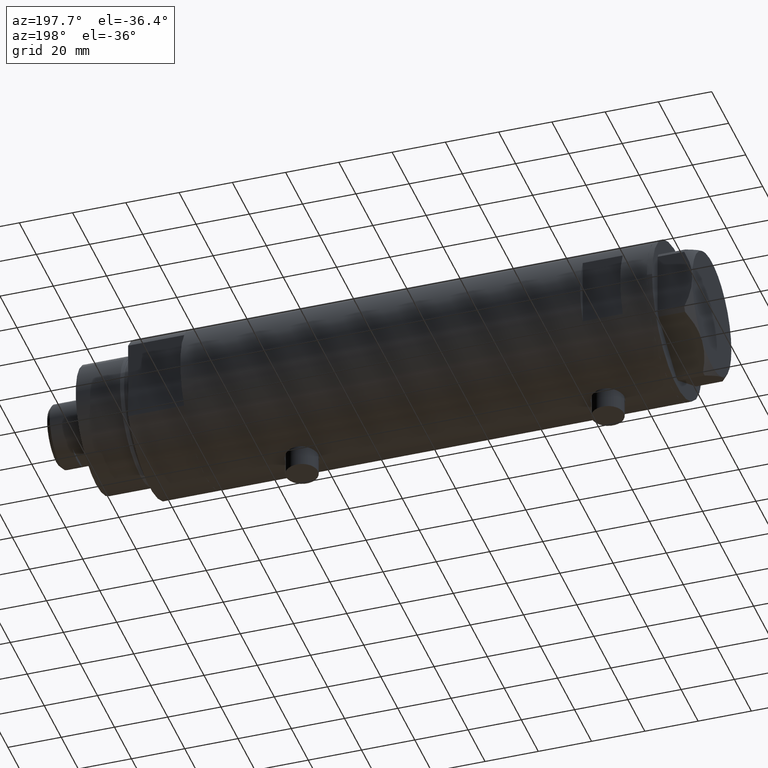
[diagram: clean part render]
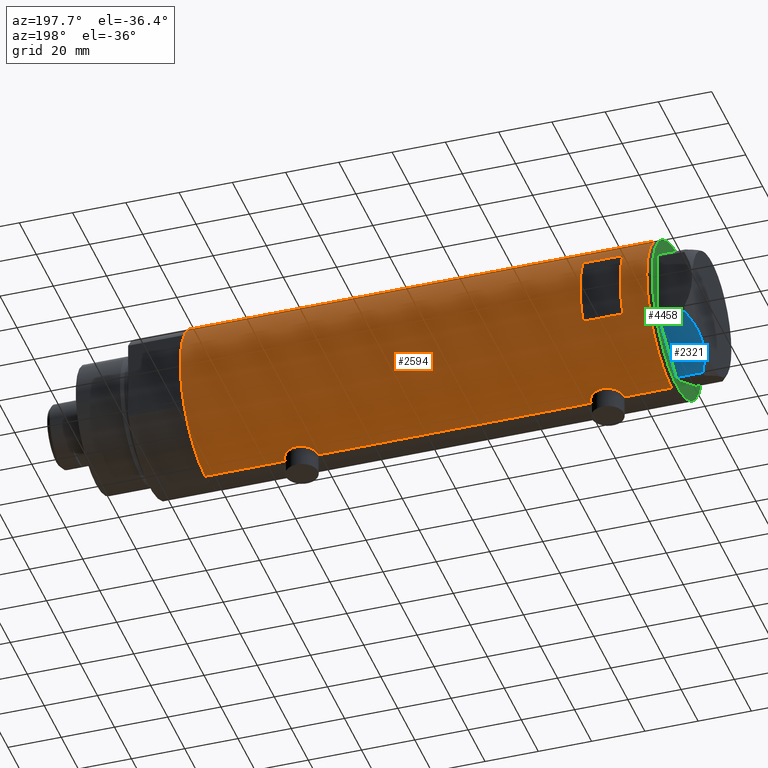
[diagram: same view with three faces highlighted in distinct colors, each labeled with its STEP entity id]
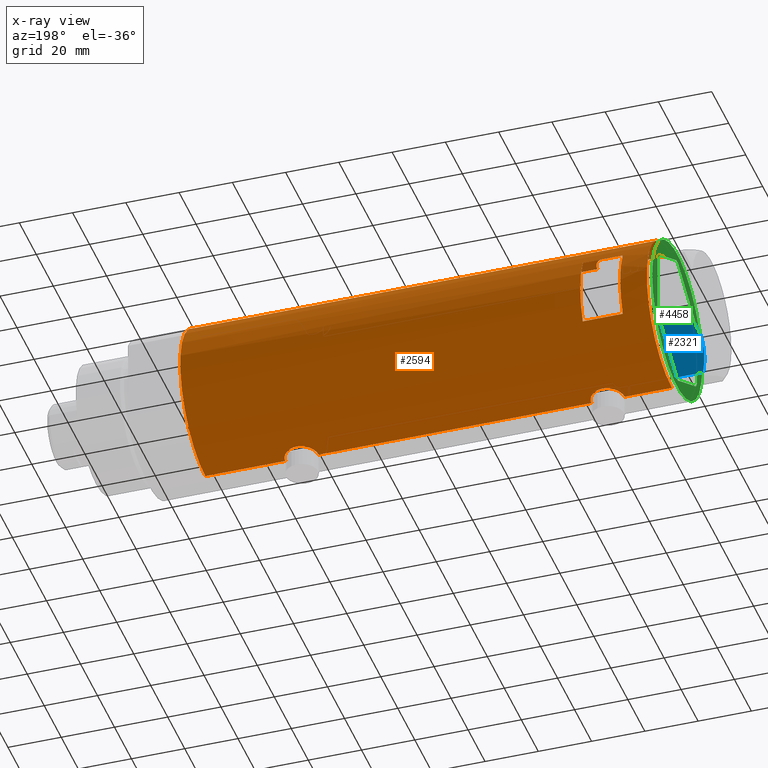
[diagram: x-ray of the same camera — body ghosted, the three highlighted faces saturated]
A machine part, auxiliary view with three faces highlighted in distinct colors.
The next image is the same camera in x-ray (body ghosted, the three faces saturated) — at least one of them is partly hidden behind the body in this view.
Their STEP definitions:

[orange] entity #2594 — the highlighted cylindrical surface (partial cylindrical patch) has radius 29.5 mm, axis along (-1, -0, 0).
#20 = CARTESIAN_POINT ( 'NONE',  ( 29.45150476095192360, 1.707859807438202315, 59.79292881343939570 ) ) ;
#35 = EDGE_CURVE ( 'NONE', #1515, #3606, #4014, .T. ) ;
#53 = EDGE_CURVE ( 'NONE', #2247, #709, #563, .T. ) ;
#61 = CARTESIAN_POINT ( 'NONE',  ( -29.50000000000000355, -1.989795151372050188E-15, -45.04999999999999005 ) ) ;
#86 = CARTESIAN_POINT ( 'NONE',  ( 29.49693976195335665, 0.4910732786937788696, 74.58799094295621046 ) ) ;
#89 = DIRECTION ( 'NONE',  ( 0.000000000000000000, 1.000000000000000000, -4.704334850106595203E-15 ) ) ;
#96 = CIRCLE ( 'NONE', #2564, 29.50000000000000355 ) ;
#171 = VECTOR ( 'NONE', #1683, 1000.000000000000000 ) ;
#221 = CARTESIAN_POINT ( 'NONE',  ( -29.33379699751450431, 3.132328395749495620, 58.18767835513889253 ) ) ;
#227 = CARTESIAN_POINT ( 'NONE',  ( -28.83028740688047620, 6.250162243045991772, -51.70646065908373856 ) ) ;
#244 = CARTESIAN_POINT ( 'NONE',  ( -29.50000000000000355, 0.4142160563134685836, 69.84999999999999432 ) ) ;
#247 = CIRCLE ( 'NONE', #2928, 29.50000000000000355 ) ;
#250 = CARTESIAN_POINT ( 'NONE',  ( -29.31451746246149526, 3.307268797680013694, -56.60714841985004142 ) ) ;
#265 = CARTESIAN_POINT ( 'NONE',  ( -29.21113960567726764, 4.128622307952521275, 58.88985466616444597 ) ) ;
#275 = CARTESIAN_POINT ( 'NONE',  ( 28.95590528945748687, 5.641861744747095564, -43.45235088071117246 ) ) ;
#287 = CARTESIAN_POINT ( 'NONE',  ( -29.12318177724206336, 4.709191267490247412, 59.47028949758345817 ) ) ;
#314 = CARTESIAN_POINT ( 'NONE',  ( -29.37156641804199708, 2.775801885207113795, 69.21472569706632783 ) ) ;
#326 = CARTESIAN_POINT ( 'NONE',  ( 28.95615051861771860, 5.649234316505054032, -53.35715418746725192 ) ) ;
#363 = DIRECTION ( 'NONE',  ( 0.000000000000000000, 4.625929269271487689E-15, 1.000000000000000000 ) ) ;
#364 = DIRECTION ( 'NONE',  ( 1.000000000000000000, 0.000000000000000000, 0.000000000000000000 ) ) ;
#378 = EDGE_CURVE ( 'NONE', #2247, #3555, #448, .T. ) ;
#384 = CARTESIAN_POINT ( 'NONE',  ( 29.17471722935868073, 4.373569479501278501, 61.00231157590981468 ) ) ;
#410 = CARTESIAN_POINT ( 'NONE',  ( 28.72322018454531189, 6.726124749058830510, 70.42706852850997734 ) ) ;
#417 = VERTEX_POINT ( 'NONE', #740 ) ;
#448 = CIRCLE ( 'NONE', #3178, 29.50000000000000355 ) ;
#466 = CARTESIAN_POINT ( 'NONE',  ( -29.41782704931129899, 2.208494778271262948, -45.44961702072823329 ) ) ;
#486 = ORIENTED_EDGE ( 'NONE', *, *, #53, .F. ) ;
#534 = CARTESIAN_POINT ( 'NONE',  ( -28.83035796536222861, 6.249836767212684663, -50.88856505377280115 ) ) ;
#541 = CARTESIAN_POINT ( 'NONE',  ( 29.45150476095192360, 1.707859807438201871, -55.70707118656059720 ) ) ;
#557 = CARTESIAN_POINT ( 'NONE',  ( 0.000000000000000000, 0.000000000000000000, 77.60000000000002274 ) ) ;
#563 = LINE ( 'NONE', #2328, #2675 ) ;
#576 = CARTESIAN_POINT ( 'NONE',  ( -29.43187585711094911, 2.013330896687708815, 69.52040860029104863 ) ) ;
#583 = CARTESIAN_POINT ( 'NONE',  ( -29.48289442777307201, 1.024392307325228124, -57.46888222528699686 ) ) ;
#592 = CARTESIAN_POINT ( 'NONE',  ( 29.47533087885488712, 1.230190383163952239, 74.50252131767059893 ) ) ;
#599 = CARTESIAN_POINT ( 'NONE',  ( -28.87327190949138256, 6.049038945481236773, 61.97548271794827457 ) ) ;
#612 = CARTESIAN_POINT ( 'NONE',  ( 28.77473834757381610, 6.507156404236260627, -52.16162684060293486 ) ) ;
#625 = CARTESIAN_POINT ( 'NONE',  ( -29.49999999999999645, 0.2042768310961489142, 57.34999999999998010 ) ) ;
#643 = CARTESIAN_POINT ( 'NONE',  ( -29.48933702067640539, 0.8192029158410146783, 57.40049277733301381 ) ) ;
#662 = CARTESIAN_POINT ( 'NONE',  ( -29.49128627113591605, 0.8212788586050359108, 69.80923124908871102 ) ) ;
#668 = CARTESIAN_POINT ( 'NONE',  ( -28.94521404191311831, 5.694822755760264421, -53.88333046401345428 ) ) ;
#692 = CARTESIAN_POINT ( 'NONE',  ( 29.43668864566816268, 1.946133027943908855, 59.85269087298998869 ) ) ;
#700 = CARTESIAN_POINT ( 'NONE',  ( 28.69800960089390074, 6.832546664705480666, -45.29724969708693294 ) ) ;
#709 = VERTEX_POINT ( 'NONE', #4451 ) ;
#715 = CARTESIAN_POINT ( 'NONE',  ( 28.54350045195475971, 7.451747857568897793, 66.11733997124500206 ) ) ;
#716 = CYLINDRICAL_SURFACE ( 'NONE', #3917, 29.50000000000000355 ) ;
#740 = CARTESIAN_POINT ( 'NONE',  ( -29.50000000000000355, 3.612708057484692393E-15, 87.59999999999999432 ) ) ;
#764 = VERTEX_POINT ( 'NONE', #2559 ) ;
#768 = CARTESIAN_POINT ( 'NONE',  ( 28.59328333056173221, 7.258376466535471749, 69.05124667484832912 ) ) ;
#769 = DIRECTION ( 'NONE',  ( 1.000000000000000000, 0.000000000000000000, 0.000000000000000000 ) ) ;
#784 = VERTEX_POINT ( 'NONE', #2585 ) ;
#790 = ORIENTED_EDGE ( 'NONE', *, *, #4267, .F. ) ;
#847 = CARTESIAN_POINT ( 'NONE',  ( -29.45614208737134732, 1.620034288692378199, -45.26011356088388737 ) ) ;
#858 = ORIENTED_EDGE ( 'NONE', *, *, #2428, .F. ) ;
#869 = CARTESIAN_POINT ( 'NONE',  ( -29.46640581083894261, 1.421634556901805402, -45.21041108910578998 ) ) ;
#870 = CARTESIAN_POINT ( 'NONE',  ( -29.50000000000000355, -3.685106651658548747E-16, 69.84999999999999432 ) ) ;
#886 = CARTESIAN_POINT ( 'NONE',  ( -29.43187585711095267, 2.013330896687710592, -45.37959139970892863 ) ) ;
#905 = CARTESIAN_POINT ( 'NONE',  ( -29.21045586191521082, 4.133246019522343495, -46.59426098433518604 ) ) ;
#912 = CARTESIAN_POINT ( 'NONE',  ( 29.17471722935868428, 4.373569479501278501, -54.49768842409016401 ) ) ;
#917 = EDGE_CURVE ( 'NONE', #3679, #417, #3800, .T. ) ;
#925 = CARTESIAN_POINT ( 'NONE',  ( -29.25454443288368722, 3.812919888526638879, 68.56897379180909979 ) ) ;
#946 = CARTESIAN_POINT ( 'NONE',  ( -28.96258065965881912, 5.606121065329691788, 60.82948014931239555 ) ) ;
#963 = CARTESIAN_POINT ( 'NONE',  ( -29.07990598238132662, 4.966177878631055087, 67.41685031646507298 ) ) ;
#970 = CARTESIAN_POINT ( 'NONE',  ( -28.99931529802529795, 5.412890550536865852, -54.43129199055216816 ) ) ;
#993 = CARTESIAN_POINT ( 'NONE',  ( -29.12318177724206691, 4.709191267490247412, -55.42971050241654751 ) ) ;
#997 = CARTESIAN_POINT ( 'NONE',  ( 29.26131531204081426, 3.767377415172554311, -41.89654697428871799 ) ) ;
#1035 = CARTESIAN_POINT ( 'NONE',  ( 29.50000000000000355, -8.867894669064240341E-21, -40.89999999999999858 ) ) ;
#1040 = CARTESIAN_POINT ( 'NONE',  ( 29.48463566286631377, 0.9832945201638395583, -40.96062548237706835 ) ) ;
#1050 = VECTOR ( 'NONE', #1667, 1000.000000000000000 ) ;
#1056 = CARTESIAN_POINT ( 'NONE',  ( 28.63233008736634133, 7.102474189478613198, 64.67814868761114155 ) ) ;
#1086 = ORIENTED_EDGE ( 'NONE', *, *, #2974, .F. ) ;
#1087 = CARTESIAN_POINT ( 'NONE',  ( 12.96148139681573319, 26.49999999999998934, 77.60000000000002274 ) ) ;
#1090 = EDGE_CURVE ( 'NONE', #3493, #764, #2997, .T. ) ;
#1096 = CARTESIAN_POINT ( 'NONE',  ( 29.50000000000000711, 0.4977435627019807241, 59.60000000000000853 ) ) ;
#1121 = CARTESIAN_POINT ( 'NONE',  ( 29.31521205951408504, 3.327945423969213223, 73.83906509227089998 ) ) ;
#1129 = VERTEX_POINT ( 'NONE', #1087 ) ;
#1147 = ORIENTED_EDGE ( 'NONE', *, *, #2776, .F. ) ;
#1171 = CARTESIAN_POINT ( 'NONE',  ( -28.87539346372184212, 6.038655803256923527, -49.67547335916925988 ) ) ;
#1217 = ORIENTED_EDGE ( 'NONE', *, *, #3432, .T. ) ;
#1250 = CARTESIAN_POINT ( 'NONE',  ( 29.38138226830144006, 2.652609128011935269, -55.41954601959671578 ) ) ;
#1261 = VECTOR ( 'NONE', #3569, 1000.000000000000000 ) ;
#1262 = CARTESIAN_POINT ( 'NONE',  ( -29.45783481716065211, 1.627188261681551396, 57.55163589091055343 ) ) ;
#1285 = CARTESIAN_POINT ( 'NONE',  ( -29.12335997091252793, 4.707903814166463974, 67.73078007378802567 ) ) ;
#1291 = CARTESIAN_POINT ( 'NONE',  ( -12.96148139681573319, 26.49999999999999645, -87.59999999999999432 ) ) ;
#1296 = CARTESIAN_POINT ( 'NONE',  ( 29.50000000000000355, 0.000000000000000000, -87.59999999999999432 ) ) ;
#1303 = CARTESIAN_POINT ( 'NONE',  ( -28.96085629491409819, 5.616414220648535682, 66.37199639590009781 ) ) ;
#1311 = CARTESIAN_POINT ( 'NONE',  ( 28.59637095282950625, 7.245897747848926151, -50.35127374277608681 ) ) ;
#1315 = DIRECTION ( 'NONE',  ( 0.000000000000000000, 0.000000000000000000, 1.000000000000000000 ) ) ;
#1322 = CARTESIAN_POINT ( 'NONE',  ( -28.83925158138408307, 6.209208576703538540, 62.77801617131193979 ) ) ;
#1350 = CARTESIAN_POINT ( 'NONE',  ( -29.45614208737133310, 1.620034288692375535, 69.63988643911609699 ) ) ;
#1360 = CARTESIAN_POINT ( 'NONE',  ( 28.72066933684370227, 6.738715173607846332, -51.72836955953554394 ) ) ;
#1372 = CARTESIAN_POINT ( 'NONE',  ( 28.59637095282950270, 7.245897747848927040, 65.14872625722391319 ) ) ;
#1396 = CARTESIAN_POINT ( 'NONE',  ( 29.38138226830143651, 2.652609128011935713, 60.08045398040327001 ) ) ;
#1426 = CARTESIAN_POINT ( 'NONE',  ( 28.54372006395177763, 7.450900983269892031, 68.08765735635913074 ) ) ;
#1444 = CARTESIAN_POINT ( 'NONE',  ( 29.48742029994219394, 0.9867701249543444630, 59.64905492505780416 ) ) ;
#1460 = CARTESIAN_POINT ( 'NONE',  ( 29.26131531204080360, 3.767377415172555644, 73.60345302571126069 ) ) ;
#1461 = FACE_OUTER_BOUND ( 'NONE', #4215, .T. ) ;
#1476 = ORIENTED_EDGE ( 'NONE', *, *, #3996, .F. ) ;
#1487 = DIRECTION ( 'NONE',  ( 0.000000000000000000, 0.000000000000000000, 1.000000000000000000 ) ) ;
#1515 = VERTEX_POINT ( 'NONE', #2774 ) ;
#1523 = DIRECTION ( 'NONE',  ( 0.000000000000000000, 0.000000000000000000, 1.000000000000000000 ) ) ;
#1526 = B_SPLINE_CURVE_WITH_KNOTS ( 'NONE', 3,
 ( #3987, #3964, #4344, #869, #847, #886, #466, #2258, #1856, #3218, #905, #2883, #2595, #1941, #4254, #3305, #3628, #1171, #2220, #3586, #534, #227, #2389, #1958, #3369, #668, #3030, #970, #3672, #4072, #993, #3694, #3078, #250, #2654, #2370, #4112, #2694, #2307, #583, #4433, #1635, #1673, #3009 ),
 .UNSPECIFIED., .F., .F.,
 ( 4, 2, 2, 2, 2, 2, 2, 2, 2, 2, 2, 2, 2, 2, 2, 2, 2, 2, 2, 2, 2, 4 ),
 ( 1.932886166535861628E-18, 0.001224749128302346848, 0.001837123692453517237, 0.002449498256604687625, 0.003674247384907027535, 0.004898996513209368311, 0.006123745641511708221, 0.007348494769814048130, 0.007960869333965210279, 0.008573243898116372427, 0.009797993026418693255, 0.01102274215472101582, 0.01224749128302333664, 0.01285986584717448838, 0.01347224041132563666, 0.01469698953962794014, 0.01592173866793024709, 0.01653411323208139536, 0.01714648779623254710, 0.01837123692453484017, 0.01898361148868598497, 0.01959598605283713324 ),
 .UNSPECIFIED. ) ;
#1589 = EDGE_CURVE ( 'NONE', #3846, #3493, #1938, .T. ) ;
#1605 = B_SPLINE_CURVE_WITH_KNOTS ( 'NONE', 3,
 ( #4382, #244, #662, #3365, #1350, #576, #3024, #314, #1653, #925, #3713, #1285, #963, #3383, #1303, #1690, #4428, #2036, #4087, #2339, #4337, #4026, #1322, #599, #1953, #3405, #946, #2319, #3316, #2364, #287, #265, #3749, #3688, #221, #1669, #2959, #4399, #1262, #2632, #643, #2303, #625, #1975 ),
 .UNSPECIFIED., .F., .F.,
 ( 4, 2, 2, 2, 2, 2, 2, 2, 2, 2, 2, 2, 2, 2, 2, 2, 2, 2, 2, 2, 2, 4 ),
 ( 3.579711039243685734E-19, 0.001224749128302344029, 0.001837123692453515285, 0.002449498256604686758, 0.003674247384907013657, 0.004898996513209340556, 0.006123745641511668322, 0.007348494769813995221, 0.007960869333965159972, 0.008573243898116323855, 0.009797993026418609988, 0.01102274215472089959, 0.01224749128302318572, 0.01285986584717433920, 0.01347224041132549614, 0.01469698953962781697, 0.01592173866793014300, 0.01653411323208130515, 0.01714648779623246730, 0.01837123692453479160, 0.01898361148868595721, 0.01959598605283711936 ),
 .UNSPECIFIED. ) ;
#1635 = CARTESIAN_POINT ( 'NONE',  ( -29.49787850362430675, 0.4089683628077651623, -57.54001026437015298 ) ) ;
#1640 = CARTESIAN_POINT ( 'NONE',  ( 28.89369475765811757, 5.952264974793427754, -43.83049483813753966 ) ) ;
#1653 = CARTESIAN_POINT ( 'NONE',  ( -29.33500454540941149, 3.134363790739238542, 69.02262134463678933 ) ) ;
#1660 = CARTESIAN_POINT ( 'NONE',  ( 28.63233008736633778, 7.102474189478610533, -50.82185131238886555 ) ) ;
#1667 = DIRECTION ( 'NONE',  ( -0.000000000000000000, -0.000000000000000000, -1.000000000000000000 ) ) ;
#1669 = CARTESIAN_POINT ( 'NONE',  ( -29.37021410611213312, 2.770135525807581711, 57.99365930977168659 ) ) ;
#1673 = CARTESIAN_POINT ( 'NONE',  ( -29.50000000000000355, 0.2042768310961517730, -57.55000000000001137 ) ) ;
#1676 = CARTESIAN_POINT ( 'NONE',  ( 29.50000000000000355, -8.867894669064240341E-21, -40.89999999999999858 ) ) ;
#1683 = DIRECTION ( 'NONE',  ( 0.000000000000000000, 0.000000000000000000, 1.000000000000000000 ) ) ;
#1690 = CARTESIAN_POINT ( 'NONE',  ( -28.91416466586725420, 5.850419487802255070, 65.80827647633630306 ) ) ;
#1704 = CARTESIAN_POINT ( 'NONE',  ( 28.86328010881652872, 6.097564286278109869, -44.02631709077303412 ) ) ;
#1722 = CARTESIAN_POINT ( 'NONE',  ( 28.53073993742369296, 7.499791908386148620, 66.60538051566959439 ) ) ;
#1728 = CARTESIAN_POINT ( 'NONE',  ( 28.65280969280606982, 7.019670864411686750, -51.05213168683109615 ) ) ;
#1745 = CARTESIAN_POINT ( 'NONE',  ( 29.50000000000000355, 0.000000000000000000, -87.59999999999999432 ) ) ;
#1760 = CARTESIAN_POINT ( 'NONE',  ( 29.05056090758569098, 5.132790299589558458, 61.62608273347917276 ) ) ;
#1802 = CARTESIAN_POINT ( 'NONE',  ( 28.89369475765812112, 5.952264974793427754, 71.66950516186246034 ) ) ;
#1820 = CARTESIAN_POINT ( 'NONE',  ( 29.50000000000000355, -8.867894669064240341E-21, 74.59999999999999432 ) ) ;
#1846 = VERTEX_POINT ( 'NONE', #2378 ) ;
#1856 = CARTESIAN_POINT ( 'NONE',  ( -29.33500454540941149, 3.134363790739244759, -45.87737865536319504 ) ) ;
#1925 = CARTESIAN_POINT ( 'NONE',  ( 29.40165444879503909, 2.418426732012822100, -55.50367056434786406 ) ) ;
#1938 = B_SPLINE_CURVE_WITH_KNOTS ( 'NONE', 3,
 ( #3500, #1096, #1444, #20, #692, #3328, #1396, #2756, #2086, #384, #2438, #4452, #1760, #3077, #2476, #2456, #4140, #3116, #1056, #1372, #3801, #715, #1722, #2503, #1426, #768, #3819, #4202, #410, #2730, #4110, #2065, #1802, #3430, #3472, #3160, #2829, #1460, #1121, #2662, #1969, #592, #2212, #86, #2315, #1820 ),
 .UNSPECIFIED., .F., .F.,
 ( 4, 2, 2, 2, 2, 2, 2, 2, 2, 2, 2, 2, 2, 2, 2, 2, 2, 2, 2, 2, 2, 2, 4 ),
 ( 2.075019889373263572E-18, 0.001471587963626213007, 0.002207381945439318427, 0.002943175927252423846, 0.004414763890878631650, 0.005150557872691736636, 0.005886351854504842489, 0.007357939818131036848, 0.008829527781757228605, 0.009565321763570345734, 0.01030111574538346113, 0.01177270370900965375, 0.01324429167263584638, 0.01471587963626204074, 0.01545167361807513358, 0.01618746759988822989, 0.01692326158170132794, 0.01765905556351441905, 0.01913064352714058391, 0.02060223149076674184, 0.02207381945439290671, 0.02280961343620598394, 0.02354540741801906811 ),
 .UNSPECIFIED. ) ;
#1941 = CARTESIAN_POINT ( 'NONE',  ( -28.99817753551065280, 5.423057650933445828, -48.16603848537405952 ) ) ;
#1953 = CARTESIAN_POINT ( 'NONE',  ( -28.89816269917384872, 5.930588606439750166, 61.58529684457829489 ) ) ;
#1958 = CARTESIAN_POINT ( 'NONE',  ( -28.87327190949136835, 6.049038945481238549, -52.92451728205170980 ) ) ;
#1969 = CARTESIAN_POINT ( 'NONE',  ( 29.43913092143246146, 1.954882548385545649, 74.35749234733351898 ) ) ;
#1975 = CARTESIAN_POINT ( 'NONE',  ( -29.50000000000000355, 3.612706708236066082E-15, 57.34999999999998721 ) ) ;
#2024 = CARTESIAN_POINT ( 'NONE',  ( 28.72322018454529768, 6.726124749058826957, -45.07293147149000845 ) ) ;
#2036 = CARTESIAN_POINT ( 'NONE',  ( -28.87539346372185634, 6.038655803256916421, 65.22452664083074581 ) ) ;
#2049 = CARTESIAN_POINT ( 'NONE',  ( 29.31521205951408859, 3.327945423969223881, -41.66093490772912133 ) ) ;
#2065 = CARTESIAN_POINT ( 'NONE',  ( 28.86328010881651451, 6.097564286278104539, 71.47368290922693745 ) ) ;
#2083 = CARTESIAN_POINT ( 'NONE',  ( -29.50000000000000355, 3.612708057484692393E-15, -87.59999999999999432 ) ) ;
#2086 = CARTESIAN_POINT ( 'NONE',  ( 29.26187100173485334, 3.763222966830670480, 60.59401741939379349 ) ) ;
#2088 = DIRECTION ( 'NONE',  ( 0.000000000000000000, 0.000000000000000000, 1.000000000000000000 ) ) ;
#2130 = LINE ( 'NONE', #3498, #3649 ) ;
#2141 = EDGE_CURVE ( 'NONE', #709, #2641, #2658, .T. ) ;
#2169 = CARTESIAN_POINT ( 'NONE',  ( -29.50000000000000355, 3.612708057484692393E-15, -87.59999999999999432 ) ) ;
#2178 = VERTEX_POINT ( 'NONE', #2700 ) ;
#2212 = CARTESIAN_POINT ( 'NONE',  ( 29.48463566286631377, 0.9832945201638393362, 74.53937451762291744 ) ) ;
#2213 = DIRECTION ( 'NONE',  ( -0.000000000000000000, -0.000000000000000000, -1.000000000000000000 ) ) ;
#2220 = CARTESIAN_POINT ( 'NONE',  ( -28.86473101544359210, 6.089252369705496548, -49.87667050833969284 ) ) ;
#2222 = CARTESIAN_POINT ( 'NONE',  ( -12.96148139681573319, 26.49999999999998934, 77.60000000000002274 ) ) ;
#2242 = DIRECTION ( 'NONE',  ( 0.000000000000000000, 0.000000000000000000, 1.000000000000000000 ) ) ;
#2247 = VERTEX_POINT ( 'NONE', #1745 ) ;
#2258 = CARTESIAN_POINT ( 'NONE',  ( -29.37156641804198642, 2.775801885207113351, -45.68527430293367786 ) ) ;
#2266 = CARTESIAN_POINT ( 'NONE',  ( 29.50000000000000355, -1.363453657738827866E-15, -55.89999999999999858 ) ) ;
#2303 = CARTESIAN_POINT ( 'NONE',  ( -29.49787850362430319, 0.4089683628077612210, 57.35998973562983849 ) ) ;
#2307 = CARTESIAN_POINT ( 'NONE',  ( -29.45783481716064856, 1.627188261681552284, -57.34836410908944515 ) ) ;
#2315 = CARTESIAN_POINT ( 'NONE',  ( 29.50000000000000355, 0.2453482418156841816, 74.59999999999999432 ) ) ;
#2319 = CARTESIAN_POINT ( 'NONE',  ( -28.99931529802531927, 5.412890550536861412, 60.46870800944782331 ) ) ;
#2328 = CARTESIAN_POINT ( 'NONE',  ( 29.50000000000000355, 0.000000000000000000, -87.59999999999999432 ) ) ;
#2339 = CARTESIAN_POINT ( 'NONE',  ( -28.83909818927744695, 6.209925900742497618, 64.41778075451992436 ) ) ;
#2364 = CARTESIAN_POINT ( 'NONE',  ( -29.07940225710135351, 4.969011347753393260, 59.78730265529816990 ) ) ;
#2370 = CARTESIAN_POINT ( 'NONE',  ( -29.37021410611214378, 2.770135525807589261, -56.90634069022830488 ) ) ;
#2373 = CARTESIAN_POINT ( 'NONE',  ( 29.08308069045668631, 4.954707331652121738, -42.74826371623226606 ) ) ;
#2378 = CARTESIAN_POINT ( 'NONE',  ( -29.50000000000000355, 3.612706708267620518E-15, -57.55000000000000426 ) ) ;
#2389 = CARTESIAN_POINT ( 'NONE',  ( -28.83925158138407596, 6.209208576703542981, -52.12198382868806590 ) ) ;
#2428 = EDGE_CURVE ( 'NONE', #3932, #1846, #1526, .T. ) ;
#2438 = CARTESIAN_POINT ( 'NONE',  ( 29.14416130131008842, 4.572185141625602078, 61.14974588234445463 ) ) ;
#2453 = CARTESIAN_POINT ( 'NONE',  ( 0.000000000000000000, 0.000000000000000000, 87.59999999999999432 ) ) ;
#2456 = CARTESIAN_POINT ( 'NONE',  ( 28.77473834757382321, 6.507156404236264180, 63.33837315939705093 ) ) ;
#2457 = CARTESIAN_POINT ( 'NONE',  ( 0.000000000000000000, 0.000000000000000000, -87.59999999999999432 ) ) ;
#2476 = CARTESIAN_POINT ( 'NONE',  ( 28.89325003604224307, 5.958922200807243996, 62.51915213504485536 ) ) ;
#2477 = FACE_BOUND ( 'NONE', #3923, .T. ) ;
#2499 = DIRECTION ( 'NONE',  ( 0.000000000000000000, 0.000000000000000000, 1.000000000000000000 ) ) ;
#2503 = CARTESIAN_POINT ( 'NONE',  ( 28.53063088452983465, 7.500206755597514707, 67.58828856904807481 ) ) ;
#2559 = CARTESIAN_POINT ( 'NONE',  ( 29.50000000000000355, 0.000000000000000000, 87.59999999999999432 ) ) ;
#2564 = AXIS2_PLACEMENT_3D ( 'NONE', #2453, #2499, #3155 ) ;
#2584 = ORIENTED_EDGE ( 'NONE', *, *, #3396, .F. ) ;
#2585 = CARTESIAN_POINT ( 'NONE',  ( -29.50000000000000355, 3.612706708236066082E-15, 57.34999999999998721 ) ) ;
#2594 = ADVANCED_FACE ( 'NONE', ( #2477, #1461 ), #716, .T. ) ;
#2595 = CARTESIAN_POINT ( 'NONE',  ( -29.07990598238133373, 4.966177878631063081, -47.48314968353489718 ) ) ;
#2618 = CARTESIAN_POINT ( 'NONE',  ( 29.31463363472445849, 3.333180401682678262, -55.13656844683045222 ) ) ;
#2632 = CARTESIAN_POINT ( 'NONE',  ( -29.48289442777306846, 1.024392307325223905, 57.43111777471300883 ) ) ;
#2641 = VERTEX_POINT ( 'NONE', #1035 ) ;
#2654 = CARTESIAN_POINT ( 'NONE',  ( -29.33379699751449365, 3.132328395749501393, -56.71232164486110605 ) ) ;
#2657 = CARTESIAN_POINT ( 'NONE',  ( 29.47533087885489067, 1.230190383163956458, -40.99747868232940817 ) ) ;
#2658 = B_SPLINE_CURVE_WITH_KNOTS ( 'NONE', 3,
 ( #2266, #3634, #2950, #541, #4326, #1925, #1250, #2618, #3993, #912, #4440, #3436, #3786, #326, #4076, #612, #1360, #1728, #1660, #1311, #3392, #3723, #3355, #4120, #2677, #3035, #3373, #700, #2024, #4459, #3702, #1704, #1640, #275, #4033, #2373, #4389, #997, #2049, #4414, #3082, #2657, #1040, #3740, #4054, #1676 ),
 .UNSPECIFIED., .F., .F.,
 ( 4, 2, 2, 2, 2, 2, 2, 2, 2, 2, 2, 2, 2, 2, 2, 2, 2, 2, 2, 2, 2, 2, 4 ),
 ( 1.324216582005999085E-18, 0.001471587963626213007, 0.002207381945439318427, 0.002943175927252423846, 0.004414763890878634252, 0.005150557872691738370, 0.005886351854504841621, 0.007357939818131030776, 0.008829527781757219931, 0.009565321763570316244, 0.01030111574538341256, 0.01177270370900960171, 0.01324429167263579260, 0.01471587963626198176, 0.01545167361807507807, 0.01618746759988817091, 0.01692326158170126896, 0.01765905556351436007, 0.01913064352714053881, 0.02060223149076671756, 0.02207381945439289284, 0.02280961343620598047, 0.02354540741801906811 ),
 .UNSPECIFIED. ) ;
#2662 = CARTESIAN_POINT ( 'NONE',  ( 29.40387556522357571, 2.422597899785625231, 74.21486039769831677 ) ) ;
#2675 = VECTOR ( 'NONE', #2242, 1000.000000000000000 ) ;
#2677 = CARTESIAN_POINT ( 'NONE',  ( 28.54372006395177763, 7.450900983269891142, -47.41234264364084794 ) ) ;
#2694 = CARTESIAN_POINT ( 'NONE',  ( -29.43341305963175714, 2.016871341298211551, -57.22974668998805470 ) ) ;
#2700 = CARTESIAN_POINT ( 'NONE',  ( 12.96148139681571898, 26.50000000000000355, 62.60000000000001563 ) ) ;
#2730 = CARTESIAN_POINT ( 'NONE',  ( 28.77649569280672992, 6.494415104660914650, 70.85934988816623559 ) ) ;
#2756 = CARTESIAN_POINT ( 'NONE',  ( 29.31463363472445849, 3.333180401682676930, 60.36343155316954068 ) ) ;
#2765 = AXIS2_PLACEMENT_3D ( 'NONE', #557, #2213, #3211 ) ;
#2768 = VECTOR ( 'NONE', #1523, 1000.000000000000000 ) ;
#2774 = CARTESIAN_POINT ( 'NONE',  ( -12.96148139681574030, 26.50000000000000355, 62.60000000000001563 ) ) ;
#2776 = EDGE_CURVE ( 'NONE', #3606, #1129, #4139, .T. ) ;
#2788 = ORIENTED_EDGE ( 'NONE', *, *, #917, .T. ) ;
#2829 = CARTESIAN_POINT ( 'NONE',  ( 29.14546206473281487, 4.578181670952602644, 73.06056091603291236 ) ) ;
#2871 = EDGE_CURVE ( 'NONE', #3679, #784, #1605, .T. ) ;
#2883 = CARTESIAN_POINT ( 'NONE',  ( -29.12335997091253148, 4.707903814166472856, -47.16921992621198001 ) ) ;
#2884 = CARTESIAN_POINT ( 'NONE',  ( 29.50000000000000355, -8.867894669064240341E-21, 74.59999999999999432 ) ) ;
#2904 = VECTOR ( 'NONE', #1315, 1000.000000000000000 ) ;
#2928 = AXIS2_PLACEMENT_3D ( 'NONE', #3119, #363, #89 ) ;
#2950 = CARTESIAN_POINT ( 'NONE',  ( 29.48742029994219038, 0.9867701249543437969, -55.85094507494218163 ) ) ;
#2959 = CARTESIAN_POINT ( 'NONE',  ( -29.38727827406289705, 2.583363936682820938, 57.90521973871332051 ) ) ;
#2974 = EDGE_CURVE ( 'NONE', #764, #417, #96, .T. ) ;
#2997 = LINE ( 'NONE', #1296, #2904 ) ;
#3009 = CARTESIAN_POINT ( 'NONE',  ( -29.50000000000000355, 3.612706708267620518E-15, -57.55000000000000426 ) ) ;
#3024 = CARTESIAN_POINT ( 'NONE',  ( -29.41782704931130255, 2.208494778271264725, 69.45038297927175108 ) ) ;
#3030 = CARTESIAN_POINT ( 'NONE',  ( -28.96258065965880846, 5.606121065329696229, -54.07051985068762434 ) ) ;
#3035 = CARTESIAN_POINT ( 'NONE',  ( 28.59328333056173221, 7.258376466535469085, -46.44875332515167798 ) ) ;
#3077 = CARTESIAN_POINT ( 'NONE',  ( 28.95615051861771860, 5.649234316505054920, 62.14284581253274098 ) ) ;
#3078 = CARTESIAN_POINT ( 'NONE',  ( -29.25435602127558354, 3.814249285079252427, -56.26783729533990908 ) ) ;
#3082 = CARTESIAN_POINT ( 'NONE',  ( 29.43913092143246146, 1.954882548385549423, -41.14250765266648813 ) ) ;
#3116 = CARTESIAN_POINT ( 'NONE',  ( 28.65280969280607692, 7.019670864411689415, 64.44786831316889675 ) ) ;
#3119 = CARTESIAN_POINT ( 'NONE',  ( 0.000000000000000000, 0.000000000000000000, 62.60000000000011511 ) ) ;
#3121 = ORIENTED_EDGE ( 'NONE', *, *, #2141, .F. ) ;
#3155 = DIRECTION ( 'NONE',  ( 1.000000000000000000, 0.000000000000000000, 0.000000000000000000 ) ) ;
#3160 = CARTESIAN_POINT ( 'NONE',  ( 29.08308069045667565, 4.954707331652127955, 72.75173628376771262 ) ) ;
#3164 = CARTESIAN_POINT ( 'NONE',  ( 0.000000000000000000, 0.000000000000000000, -87.59999999999999432 ) ) ;
#3178 = AXIS2_PLACEMENT_3D ( 'NONE', #3164, #3453, #364 ) ;
#3211 = DIRECTION ( 'NONE',  ( 1.000000000000000000, -1.776356839400250267E-15, 0.000000000000000000 ) ) ;
#3218 = CARTESIAN_POINT ( 'NONE',  ( -29.25454443288369433, 3.812919888526644652, -46.33102620819088457 ) ) ;
#3224 = EDGE_CURVE ( 'NONE', #3932, #784, #3955, .T. ) ;
#3231 = ORIENTED_EDGE ( 'NONE', *, *, #1090, .F. ) ;
#3265 = ORIENTED_EDGE ( 'NONE', *, *, #2871, .F. ) ;
#3305 = CARTESIAN_POINT ( 'NONE',  ( -28.91416466586724354, 5.850419487802259511, -49.09172352366371683 ) ) ;
#3312 = CARTESIAN_POINT ( 'NONE',  ( -29.50000000000000355, 3.612708057484692393E-15, -87.59999999999999432 ) ) ;
#3316 = CARTESIAN_POINT ( 'NONE',  ( -29.01875661852155019, 5.308007315944000659, 60.29411629999106736 ) ) ;
#3328 = CARTESIAN_POINT ( 'NONE',  ( 29.40165444879503909, 2.418426732012822544, 59.99632943565210041 ) ) ;
#3355 = CARTESIAN_POINT ( 'NONE',  ( 28.53073993742368586, 7.499791908386146844, -48.89461948433040561 ) ) ;
#3365 = CARTESIAN_POINT ( 'NONE',  ( -29.46640581083894261, 1.421634556901801627, 69.68958891089418728 ) ) ;
#3369 = CARTESIAN_POINT ( 'NONE',  ( -28.89816269917384162, 5.930588606439753718, -53.31470315542169658 ) ) ;
#3373 = CARTESIAN_POINT ( 'NONE',  ( 28.62953349941190240, 7.116010646391488947, -45.98020539076898672 ) ) ;
#3383 = CARTESIAN_POINT ( 'NONE',  ( -28.99817753551064925, 5.423057650933436058, 66.73396151462593195 ) ) ;
#3388 = CARTESIAN_POINT ( 'NONE',  ( 29.50000000000000355, -2.136503572369537054E-15, 59.59999999999999432 ) ) ;
#3392 = CARTESIAN_POINT ( 'NONE',  ( 28.58083212642745607, 7.306745240314146628, -50.10953669436206326 ) ) ;
#3396 = EDGE_CURVE ( 'NONE', #1129, #2178, #4421, .T. ) ;
#3405 = CARTESIAN_POINT ( 'NONE',  ( -28.94521404191312541, 5.694822755760258204, 61.01666953598656562 ) ) ;
#3430 = CARTESIAN_POINT ( 'NONE',  ( 28.95590528945748687, 5.641861744747097340, 72.04764911928884885 ) ) ;
#3432 = EDGE_CURVE ( 'NONE', #3555, #1846, #4130, .T. ) ;
#3436 = CARTESIAN_POINT ( 'NONE',  ( 29.08204711695421452, 4.951923910293528408, -54.03816021594297325 ) ) ;
#3453 = DIRECTION ( 'NONE',  ( 0.000000000000000000, 0.000000000000000000, 1.000000000000000000 ) ) ;
#3472 = CARTESIAN_POINT ( 'NONE',  ( 28.98787507734748914, 5.475789924529800956, 72.23089043376626250 ) ) ;
#3493 = VERTEX_POINT ( 'NONE', #2884 ) ;
#3498 = CARTESIAN_POINT ( 'NONE',  ( 29.50000000000000355, 0.000000000000000000, -87.59999999999999432 ) ) ;
#3500 = CARTESIAN_POINT ( 'NONE',  ( 29.50000000000000355, -2.136503572369537054E-15, 59.59999999999999432 ) ) ;
#3555 = VERTEX_POINT ( 'NONE', #3769 ) ;
#3569 = DIRECTION ( 'NONE',  ( 0.000000000000000000, 0.000000000000000000, 1.000000000000000000 ) ) ;
#3586 = CARTESIAN_POINT ( 'NONE',  ( -28.83909818927744340, 6.209925900742502058, -50.48221924548004580 ) ) ;
#3606 = VERTEX_POINT ( 'NONE', #2222 ) ;
#3628 = CARTESIAN_POINT ( 'NONE',  ( -28.90008889585328333, 5.919338933253951218, -49.28359792941950701 ) ) ;
#3634 = CARTESIAN_POINT ( 'NONE',  ( 29.50000000000000711, 0.4977435627019808351, -55.89999999999999147 ) ) ;
#3649 = VECTOR ( 'NONE', #1487, 1000.000000000000000 ) ;
#3661 = CARTESIAN_POINT ( 'NONE',  ( 12.96148139681573319, 26.49999999999999645, -87.59999999999999432 ) ) ;
#3672 = CARTESIAN_POINT ( 'NONE',  ( -29.01875661852155019, 5.308007315944003324, -54.60588370000890279 ) ) ;
#3679 = VERTEX_POINT ( 'NONE', #870 ) ;
#3688 = CARTESIAN_POINT ( 'NONE',  ( -29.31451746246149881, 3.307268797680012806, 58.29285158014997137 ) ) ;
#3694 = CARTESIAN_POINT ( 'NONE',  ( -29.21113960567726409, 4.128622307952523052, -56.01014533383550997 ) ) ;
#3702 = CARTESIAN_POINT ( 'NONE',  ( 28.80468126786726657, 6.368639251981141669, -44.43139489317929502 ) ) ;
#3713 = CARTESIAN_POINT ( 'NONE',  ( -29.21045586191520371, 4.133246019522335502, 68.30573901566479833 ) ) ;
#3723 = CARTESIAN_POINT ( 'NONE',  ( 28.54350045195475971, 7.451747857568896016, -49.38266002875501925 ) ) ;
#3740 = CARTESIAN_POINT ( 'NONE',  ( 29.49693976195336020, 0.4910732786937798133, -40.91200905704376112 ) ) ;
#3749 = CARTESIAN_POINT ( 'NONE',  ( -29.25435602127558354, 3.814249285079249319, 58.63216270466007529 ) ) ;
#3769 = CARTESIAN_POINT ( 'NONE',  ( -29.50000000000000355, 3.612708057484692393E-15, -87.59999999999999432 ) ) ;
#3786 = CARTESIAN_POINT ( 'NONE',  ( 29.05056090758568388, 5.132790299589556682, -53.87391726652084145 ) ) ;
#3800 = LINE ( 'NONE', #2083, #1261 ) ;
#3801 = CARTESIAN_POINT ( 'NONE',  ( 28.58083212642745252, 7.306745240314150180, 65.39046330563792253 ) ) ;
#3808 = ORIENTED_EDGE ( 'NONE', *, *, #1589, .F. ) ;
#3819 = CARTESIAN_POINT ( 'NONE',  ( 28.62953349941190595, 7.116010646391488947, 69.51979460923099907 ) ) ;
#3846 = VERTEX_POINT ( 'NONE', #3388 ) ;
#3917 = AXIS2_PLACEMENT_3D ( 'NONE', #2457, #2088, #769 ) ;
#3923 = EDGE_LOOP ( 'NONE', ( #4161, #1476, #2584, #1147 ) ) ;
#3932 = VERTEX_POINT ( 'NONE', #61 ) ;
#3955 = LINE ( 'NONE', #3312, #171 ) ;
#3964 = CARTESIAN_POINT ( 'NONE',  ( -29.50000000000000711, 0.4142160563134685836, -45.04999999999999716 ) ) ;
#3987 = CARTESIAN_POINT ( 'NONE',  ( -29.50000000000000355, -1.989795151372050188E-15, -45.04999999999999005 ) ) ;
#3993 = CARTESIAN_POINT ( 'NONE',  ( 29.26187100173485334, 3.763222966830669147, -54.90598258060620651 ) ) ;
#3996 = EDGE_CURVE ( 'NONE', #2178, #1515, #247, .T. ) ;
#4014 = LINE ( 'NONE', #1291, #4335 ) ;
#4026 = CARTESIAN_POINT ( 'NONE',  ( -28.83028740688047620, 6.250162243045986443, 63.19353934091626002 ) ) ;
#4033 = CARTESIAN_POINT ( 'NONE',  ( 28.98787507734748914, 5.475789924529796515, -43.26910956623376592 ) ) ;
#4054 = CARTESIAN_POINT ( 'NONE',  ( 29.50000000000000711, 0.2453482418156837930, -40.89999999999999858 ) ) ;
#4072 = CARTESIAN_POINT ( 'NONE',  ( -29.07940225710134996, 4.969011347753393260, -55.11269734470185000 ) ) ;
#4076 = CARTESIAN_POINT ( 'NONE',  ( 28.89325003604224307, 5.958922200807236891, -52.98084786495515175 ) ) ;
#4087 = CARTESIAN_POINT ( 'NONE',  ( -28.86473101544358499, 6.089252369705491219, 65.02332949166031995 ) ) ;
#4110 = CARTESIAN_POINT ( 'NONE',  ( 28.80468126786726302, 6.368639251981137228, 71.06860510682068366 ) ) ;
#4112 = CARTESIAN_POINT ( 'NONE',  ( -29.38727827406290416, 2.583363936682823603, -56.99478026128668517 ) ) ;
#4120 = CARTESIAN_POINT ( 'NONE',  ( 28.53063088452982043, 7.500206755597514707, -47.91171143095193230 ) ) ;
#4130 = LINE ( 'NONE', #2169, #2768 ) ;
#4139 = CIRCLE ( 'NONE', #2765, 29.50000000000000355 ) ;
#4140 = CARTESIAN_POINT ( 'NONE',  ( 28.72066933684369516, 6.738715173607845443, 63.77163044046444185 ) ) ;
#4161 = ORIENTED_EDGE ( 'NONE', *, *, #35, .F. ) ;
#4202 = CARTESIAN_POINT ( 'NONE',  ( 28.69800960089391140, 6.832546664705483330, 70.20275030291304574 ) ) ;
#4215 = EDGE_LOOP ( 'NONE', ( #4279, #1217, #858, #4289, #3265, #2788, #1086, #3231, #3808, #790, #3121, #486 ) ) ;
#4254 = CARTESIAN_POINT ( 'NONE',  ( -28.96085629491409108, 5.616414220648541011, -48.52800360409992209 ) ) ;
#4267 = EDGE_CURVE ( 'NONE', #2641, #3846, #2130, .T. ) ;
#4279 = ORIENTED_EDGE ( 'NONE', *, *, #378, .T. ) ;
#4289 = ORIENTED_EDGE ( 'NONE', *, *, #3224, .T. ) ;
#4323 = DIRECTION ( 'NONE',  ( 0.000000000000000000, 0.000000000000000000, 1.000000000000000000 ) ) ;
#4326 = CARTESIAN_POINT ( 'NONE',  ( 29.43668864566815913, 1.946133027943908633, -55.64730912700998999 ) ) ;
#4335 = VECTOR ( 'NONE', #4323, 1000.000000000000000 ) ;
#4337 = CARTESIAN_POINT ( 'NONE',  ( -28.83035796536222861, 6.249836767212677557, 64.01143494622724006 ) ) ;
#4344 = CARTESIAN_POINT ( 'NONE',  ( -29.49128627113592316, 0.8212788586050391304, -45.09076875091126624 ) ) ;
#4382 = CARTESIAN_POINT ( 'NONE',  ( -29.50000000000000355, -3.685106651658548747E-16, 69.84999999999999432 ) ) ;
#4389 = CARTESIAN_POINT ( 'NONE',  ( 29.14546206473282197, 4.578181670952601756, -42.43943908396708764 ) ) ;
#4399 = CARTESIAN_POINT ( 'NONE',  ( -29.43341305963175003, 2.016871341298210663, 57.67025331001193678 ) ) ;
#4414 = CARTESIAN_POINT ( 'NONE',  ( 29.40387556522357571, 2.422597899785629227, -41.28513960230168323 ) ) ;
#4421 = LINE ( 'NONE', #3661, #1050 ) ;
#4428 = CARTESIAN_POINT ( 'NONE',  ( -28.90008889585329044, 5.919338933253946777, 65.61640207058047736 ) ) ;
#4433 = CARTESIAN_POINT ( 'NONE',  ( -29.48933702067641249, 0.8192029158410176759, -57.49950722266699898 ) ) ;
#4440 = CARTESIAN_POINT ( 'NONE',  ( 29.14416130131007421, 4.572185141625601190, -54.35025411765555248 ) ) ;
#4451 = CARTESIAN_POINT ( 'NONE',  ( 29.50000000000000355, -1.363453657738827866E-15, -55.89999999999999858 ) ) ;
#4452 = CARTESIAN_POINT ( 'NONE',  ( 29.08204711695421452, 4.951923910293527520, 61.46183978405700543 ) ) ;
#4459 = CARTESIAN_POINT ( 'NONE',  ( 28.77649569280673703, 6.494415104660911986, -44.64065011183377152 ) ) ;

[blue] entity #2321 — the highlighted planar face has unit normal (0, -0.5, 0.866).
#56 = VERTEX_POINT ( 'NONE', #2656 ) ;
#92 = ORIENTED_EDGE ( 'NONE', *, *, #3660, .T. ) ;
#145 = CARTESIAN_POINT ( 'NONE',  ( 9.678244919010090541, 20.97037507344921892, 13.00000000000000888 ) ) ;
#175 = CARTESIAN_POINT ( 'NONE',  ( 16.05322244309624224, 17.28978008384030929, 12.42689993760370015 ) ) ;
#369 = DIRECTION ( 'NONE',  ( 0.8660254037844415942, -0.4999999999999948930, 0.000000000000000000 ) ) ;
#420 = CARTESIAN_POINT ( 'NONE',  ( 7.884645426989624895, 22.00591022298558741, 12.70765172847692526 ) ) ;
#442 = ORIENTED_EDGE ( 'NONE', *, *, #1383, .F. ) ;
#542 = EDGE_LOOP ( 'NONE', ( #3146, #2535, #92, #1934, #442 ) ) ;
#642 = VERTEX_POINT ( 'NONE', #4028 ) ;
#660 = LINE ( 'NONE', #1368, #2411 ) ;
#885 = EDGE_CURVE ( 'NONE', #2134, #56, #3278, .T. ) ;
#918 = B_SPLINE_CURVE_WITH_KNOTS ( 'NONE', 3,
 ( #4190, #145, #420, #1550, #2934, #2599, #1229, #1576, #3968, #2244 ),
 .UNSPECIFIED., .F., .F.,
 ( 4, 2, 2, 2, 4 ),
 ( 0.01376519981810293836, 0.01998941321701560442, 0.02154546656674377267, 0.02310151991647194092, 0.02621362661592828089 ),
 .UNSPECIFIED. ) ;
#1158 = CARTESIAN_POINT ( 'NONE',  ( 18.67981377008996802, 15.77331687414936567, 11.62937486882604965 ) ) ;
#1229 = CARTESIAN_POINT ( 'NONE',  ( 3.925137811030053214, 24.29193301091819279, 11.39727285399137813 ) ) ;
#1368 = CARTESIAN_POINT ( 'NONE',  ( 22.03005154776124996, 13.83905619136162635, 13.00000000000000000 ) ) ;
#1383 = EDGE_CURVE ( 'NONE', #56, #642, #918, .T. ) ;
#1462 = EDGE_CURVE ( 'NONE', #2134, #3637, #660, .T. ) ;
#1532 = CARTESIAN_POINT ( 'NONE',  ( 15.16323225988329604, 17.80361615569442790, 12.63731396715686728 ) ) ;
#1550 = CARTESIAN_POINT ( 'NONE',  ( 5.671686373602804920, 23.28356272816407113, 12.04068176582928018 ) ) ;
#1576 = CARTESIAN_POINT ( 'NONE',  ( 2.640413878806743053, 25.03366871902166935, 10.84420102443836598 ) ) ;
#1609 = LINE ( 'NONE', #2596, #2284 ) ;
#1841 = CARTESIAN_POINT ( 'NONE',  ( 22.03005154776139207, 13.83905619136154463, 9.983800287807527596 ) ) ;
#1934 = ORIENTED_EDGE ( 'NONE', *, *, #2745, .T. ) ;
#1935 = LINE ( 'NONE', #2254, #3565 ) ;
#1960 = DIRECTION ( 'NONE',  ( -0.8660254037844415942, 0.4999999999999949485, 0.000000000000000000 ) ) ;
#2032 = DIRECTION ( 'NONE',  ( 0.000000000000000000, 0.000000000000000000, -1.000000000000000000 ) ) ;
#2093 = PLANE ( 'NONE',  #2980 ) ;
#2134 = VERTEX_POINT ( 'NONE', #3268 ) ;
#2235 = DIRECTION ( 'NONE',  ( 0.000000000000000000, 0.000000000000000000, 1.000000000000000000 ) ) ;
#2244 = CARTESIAN_POINT ( 'NONE',  ( 0.9699484522385838359, 25.99811238272274139, 9.983800287807635954 ) ) ;
#2254 = CARTESIAN_POINT ( 'NONE',  ( 0.9699484522385886098, 25.99811238272273783, 13.00000000000000000 ) ) ;
#2284 = VECTOR ( 'NONE', #1960, 999.9999999999998863 ) ;
#2321 = ADVANCED_FACE ( 'NONE', ( #2445 ), #2093, .F. ) ;
#2411 = VECTOR ( 'NONE', #2032, 1000.000000000000000 ) ;
#2445 = FACE_OUTER_BOUND ( 'NONE', #542, .T. ) ;
#2455 = CARTESIAN_POINT ( 'NONE',  ( 13.34348161667004362, 18.85424967941157703, 12.90784227772834392 ) ) ;
#2462 = DIRECTION ( 'NONE',  ( -0.4999999999999948930, -0.8660254037844415942, 0.000000000000000000 ) ) ;
#2535 = ORIENTED_EDGE ( 'NONE', *, *, #1462, .T. ) ;
#2536 = CARTESIAN_POINT ( 'NONE',  ( 11.49999999999990408, 19.91858428704219364, 13.00000000000000000 ) ) ;
#2596 = CARTESIAN_POINT ( 'NONE',  ( 22.99999999999981171, 13.27905619136164184, 0.000000000000000000 ) ) ;
#2599 = CARTESIAN_POINT ( 'NONE',  ( 4.357207709416042185, 24.04247733877631887, 11.57055225522968378 ) ) ;
#2656 = CARTESIAN_POINT ( 'NONE',  ( 11.49999999999990408, 19.91858428704219364, 13.00000000000000000 ) ) ;
#2745 = EDGE_CURVE ( 'NONE', #2816, #642, #1935, .T. ) ;
#2755 = CARTESIAN_POINT ( 'NONE',  ( 11.95865151389051384, 19.65378171203322921, 13.00000000000000355 ) ) ;
#2816 = VERTEX_POINT ( 'NONE', #3980 ) ;
#2934 = CARTESIAN_POINT ( 'NONE',  ( 5.229981517798068857, 23.53858114556529912, 11.89212886775839451 ) ) ;
#2980 = AXIS2_PLACEMENT_3D ( 'NONE', #3456, #2462, #369 ) ;
#3146 = ORIENTED_EDGE ( 'NONE', *, *, #885, .F. ) ;
#3268 = CARTESIAN_POINT ( 'NONE',  ( 22.03005154776139207, 13.83905619136154463, 9.983800287807527596 ) ) ;
#3278 = B_SPLINE_CURVE_WITH_KNOTS ( 'NONE', 3,
 ( #1841, #4244, #1158, #175, #1532, #3953, #2455, #4264, #2755, #2536 ),
 .UNSPECIFIED., .F., .F.,
 ( 4, 2, 2, 2, 4 ),
 ( 0.001228959670438484414, 0.007497079744270713011, 0.01063113978118682308, 0.01219816979964488159, 0.01376519981810293836 ),
 .UNSPECIFIED. ) ;
#3456 = CARTESIAN_POINT ( 'NONE',  ( 22.99999999999981171, 13.27905619136164184, 13.00000000000000000 ) ) ;
#3565 = VECTOR ( 'NONE', #2235, 1000.000000000000000 ) ;
#3637 = VERTEX_POINT ( 'NONE', #4322 ) ;
#3660 = EDGE_CURVE ( 'NONE', #3637, #2816, #1609, .T. ) ;
#3953 = CARTESIAN_POINT ( 'NONE',  ( 13.80210138309696788, 18.58946543380931260, 12.85271263895571181 ) ) ;
#3968 = CARTESIAN_POINT ( 'NONE',  ( 1.799196345396830266, 25.51934588838290452, 10.43131750950938930 ) ) ;
#3980 = CARTESIAN_POINT ( 'NONE',  ( 0.9699484522385886098, 25.99811238272273783, 0.000000000000000000 ) ) ;
#4028 = CARTESIAN_POINT ( 'NONE',  ( 0.9699484522385838359, 25.99811238272274139, 9.983800287807635954 ) ) ;
#4190 = CARTESIAN_POINT ( 'NONE',  ( 11.49999999999990408, 19.91858428704219364, 13.00000000000000000 ) ) ;
#4244 = CARTESIAN_POINT ( 'NONE',  ( 20.37350567916420374, 14.79546339452108228, 10.87778242614341728 ) ) ;
#4264 = CARTESIAN_POINT ( 'NONE',  ( 12.41906678023027055, 19.38796083407295612, 12.98168640760940562 ) ) ;
#4322 = CARTESIAN_POINT ( 'NONE',  ( 22.03005154776124996, 13.83905619136162635, 0.000000000000000000 ) ) ;

[green] entity #4458 — the highlighted planar face has unit normal (1, 0, -0).
#4 = VECTOR ( 'NONE', #1757, 1000.000000000000000 ) ;
#50 = CARTESIAN_POINT ( 'NONE',  ( 22.99999999999982236, 12.15905619136166571, 0.000000000000000000 ) ) ;
#57 = ORIENTED_EDGE ( 'NONE', *, *, #1933, .T. ) ;
#113 = ORIENTED_EDGE ( 'NONE', *, *, #839, .T. ) ;
#150 = CARTESIAN_POINT ( 'NONE',  ( 23.00000000000008527, -13.27905619136115867, 0.000000000000000000 ) ) ;
#170 = CARTESIAN_POINT ( 'NONE',  ( -22.99999999999999645, 13.27905619136132032, 0.000000000000000000 ) ) ;
#174 = ORIENTED_EDGE ( 'NONE', *, *, #2515, .T. ) ;
#184 = CARTESIAN_POINT ( 'NONE',  ( -22.99999999999990763, -12.15905619136148985, 0.000000000000000000 ) ) ;
#186 = EDGE_CURVE ( 'NONE', #3742, #3614, #1895, .T. ) ;
#193 = VERTEX_POINT ( 'NONE', #1402 ) ;
#251 = DIRECTION ( 'NONE',  ( -0.8660254037844380415, -0.5000000000000008882, 0.000000000000000000 ) ) ;
#263 = ORIENTED_EDGE ( 'NONE', *, *, #3552, .F. ) ;
#284 = ORIENTED_EDGE ( 'NONE', *, *, #787, .F. ) ;
#292 = AXIS2_PLACEMENT_3D ( 'NONE', #2698, #4457, #4143 ) ;
#295 = CARTESIAN_POINT ( 'NONE',  ( -22.51502577388055215, -12.99905619136159629, 0.000000000000000000 ) ) ;
#309 = DIRECTION ( 'NONE',  ( 0.000000000000000000, 0.000000000000000000, -1.000000000000000000 ) ) ;
#373 = VECTOR ( 'NONE', #1966, 999.9999999999998863 ) ;
#386 = ORIENTED_EDGE ( 'NONE', *, *, #1053, .T. ) ;
#389 = VECTOR ( 'NONE', #1150, 1000.000000000000227 ) ;
#398 = LINE ( 'NONE', #3566, #1842 ) ;
#427 = DIRECTION ( 'NONE',  ( 0.000000000000000000, 0.000000000000000000, -1.000000000000000000 ) ) ;
#481 = AXIS2_PLACEMENT_3D ( 'NONE', #3313, #309, #594 ) ;
#536 = VECTOR ( 'NONE', #2732, 1000.000000000000000 ) ;
#594 = DIRECTION ( 'NONE',  ( -1.000000000000000000, 0.000000000000000000, -0.000000000000000000 ) ) ;
#641 = CARTESIAN_POINT ( 'NONE',  ( -22.99999999999999289, 12.15905619136131754, 0.000000000000000000 ) ) ;
#684 = LINE ( 'NONE', #2863, #389 ) ;
#732 = VERTEX_POINT ( 'NONE', #1371 ) ;
#787 = EDGE_CURVE ( 'NONE', #3127, #1973, #2229, .T. ) ;
#797 = VERTEX_POINT ( 'NONE', #3230 ) ;
#839 = EDGE_CURVE ( 'NONE', #3167, #193, #2891, .T. ) ;
#892 = EDGE_LOOP ( 'NONE', ( #3394, #386, #284, #2050, #4177, #113, #263, #174, #3475, #3577, #3925, #57 ) ) ;
#896 = VECTOR ( 'NONE', #3613, 1000.000000000000000 ) ;
#921 = EDGE_CURVE ( 'NONE', #3167, #732, #3975, .T. ) ;
#926 = VERTEX_POINT ( 'NONE', #3659 ) ;
#1022 = CARTESIAN_POINT ( 'NONE',  ( -22.99999999999990408, -13.27905619136147841, 0.000000000000000000 ) ) ;
#1053 = EDGE_CURVE ( 'NONE', #3637, #1973, #3311, .T. ) ;
#1150 = DIRECTION ( 'NONE',  ( 0.4999999999999986677, 0.8660254037844392627, -0.000000000000000000 ) ) ;
#1214 = ORIENTED_EDGE ( 'NONE', *, *, #3162, .F. ) ;
#1371 = CARTESIAN_POINT ( 'NONE',  ( 22.03005154776153773, -13.83905619136115561, 0.000000000000000000 ) ) ;
#1402 = CARTESIAN_POINT ( 'NONE',  ( -0.9699484522383873264, -25.99811238272275205, 0.000000000000000000 ) ) ;
#1411 = EDGE_CURVE ( 'NONE', #3315, #4122, #3266, .T. ) ;
#1511 = CARTESIAN_POINT ( 'NONE',  ( 1.859873512960652550E-13, -25.99811238272274139, 0.000000000000000000 ) ) ;
#1591 = CARTESIAN_POINT ( 'NONE',  ( -29.50000000000000355, 3.612708057484692393E-15, 0.000000000000000000 ) ) ;
#1609 = LINE ( 'NONE', #2596, #2284 ) ;
#1657 = CARTESIAN_POINT ( 'NONE',  ( -22.03005154776132102, -13.83905619136147536, 0.000000000000000000 ) ) ;
#1684 = FACE_OUTER_BOUND ( 'NONE', #2203, .T. ) ;
#1697 = VECTOR ( 'NONE', #2796, 1000.000000000000000 ) ;
#1757 = DIRECTION ( 'NONE',  ( -1.032024811306395780E-14, 1.000000000000000000, 0.000000000000000000 ) ) ;
#1842 = VECTOR ( 'NONE', #1864, 1000.000000000000000 ) ;
#1864 = DIRECTION ( 'NONE',  ( 1.000000000000000000, 3.576939520802682722E-15, -0.000000000000000000 ) ) ;
#1895 = CIRCLE ( 'NONE', #292, 29.50000000000000355 ) ;
#1933 = EDGE_CURVE ( 'NONE', #926, #2816, #398, .T. ) ;
#1960 = DIRECTION ( 'NONE',  ( -0.8660254037844415942, 0.4999999999999949485, 0.000000000000000000 ) ) ;
#1966 = DIRECTION ( 'NONE',  ( 0.5000000000000086597, -0.8660254037844337116, -0.000000000000000000 ) ) ;
#1973 = VERTEX_POINT ( 'NONE', #50 ) ;
#1994 = LINE ( 'NONE', #2627, #4359 ) ;
#2050 = ORIENTED_EDGE ( 'NONE', *, *, #3331, .T. ) ;
#2127 = VECTOR ( 'NONE', #2399, 1000.000000000000000 ) ;
#2203 = EDGE_LOOP ( 'NONE', ( #2738, #1214 ) ) ;
#2208 = CARTESIAN_POINT ( 'NONE',  ( 23.00000000000007461, -12.15905619136117721, 0.000000000000000000 ) ) ;
#2229 = LINE ( 'NONE', #150, #4 ) ;
#2284 = VECTOR ( 'NONE', #1960, 999.9999999999998863 ) ;
#2399 = DIRECTION ( 'NONE',  ( 0.8660254037844415942, -0.4999999999999950595, 0.000000000000000000 ) ) ;
#2421 = CIRCLE ( 'NONE', #4427, 29.50000000000000355 ) ;
#2443 = VERTEX_POINT ( 'NONE', #1657 ) ;
#2515 = EDGE_CURVE ( 'NONE', #2443, #4122, #4092, .T. ) ;
#2596 = CARTESIAN_POINT ( 'NONE',  ( 22.99999999999981171, 13.27905619136164184, 0.000000000000000000 ) ) ;
#2627 = CARTESIAN_POINT ( 'NONE',  ( 22.51502577388080795, -12.99905619136115398, 0.000000000000000000 ) ) ;
#2673 = CARTESIAN_POINT ( 'NONE',  ( 29.50000000000000355, 0.000000000000000000, 0.000000000000000000 ) ) ;
#2698 = CARTESIAN_POINT ( 'NONE',  ( 0.000000000000000000, 0.000000000000000000, 0.000000000000000000 ) ) ;
#2714 = LINE ( 'NONE', #3433, #3785 ) ;
#2732 = DIRECTION ( 'NONE',  ( -0.5000000000000086597, 0.8660254037844337116, -0.000000000000000000 ) ) ;
#2738 = ORIENTED_EDGE ( 'NONE', *, *, #186, .F. ) ;
#2796 = DIRECTION ( 'NONE',  ( 3.527173405730720141E-15, -1.000000000000000000, 0.000000000000000000 ) ) ;
#2816 = VERTEX_POINT ( 'NONE', #3980 ) ;
#2863 = CARTESIAN_POINT ( 'NONE',  ( -22.51502577388069781, 12.99905619136134050, 0.000000000000000000 ) ) ;
#2891 = LINE ( 'NONE', #1511, #896 ) ;
#2894 = DIRECTION ( 'NONE',  ( -1.000000000000000000, 0.000000000000000000, 0.000000000000000000 ) ) ;
#3127 = VERTEX_POINT ( 'NONE', #2208 ) ;
#3162 = EDGE_CURVE ( 'NONE', #3614, #3742, #2421, .T. ) ;
#3167 = VERTEX_POINT ( 'NONE', #3251 ) ;
#3230 = CARTESIAN_POINT ( 'NONE',  ( -22.03005154776141339, 13.83905619136132792, 0.000000000000000000 ) ) ;
#3251 = CARTESIAN_POINT ( 'NONE',  ( 0.9699484522387533669, -25.99811238272273428, 0.000000000000000000 ) ) ;
#3266 = LINE ( 'NONE', #170, #1697 ) ;
#3311 = LINE ( 'NONE', #3638, #373 ) ;
#3313 = CARTESIAN_POINT ( 'NONE',  ( 0.000000000000000000, 0.000000000000000000, 0.000000000000000000 ) ) ;
#3315 = VERTEX_POINT ( 'NONE', #641 ) ;
#3331 = EDGE_CURVE ( 'NONE', #3127, #732, #1994, .T. ) ;
#3339 = PLANE ( 'NONE',  #481 ) ;
#3376 = CARTESIAN_POINT ( 'NONE',  ( 1.854543075583504180E-13, -26.55811238272274366, 0.000000000000000000 ) ) ;
#3394 = ORIENTED_EDGE ( 'NONE', *, *, #3660, .F. ) ;
#3401 = FACE_BOUND ( 'NONE', #892, .T. ) ;
#3433 = CARTESIAN_POINT ( 'NONE',  ( 0.000000000000000000, 26.55811238272274366, 0.000000000000000000 ) ) ;
#3475 = ORIENTED_EDGE ( 'NONE', *, *, #1411, .F. ) ;
#3552 = EDGE_CURVE ( 'NONE', #2443, #193, #3811, .T. ) ;
#3557 = EDGE_CURVE ( 'NONE', #3315, #797, #684, .T. ) ;
#3566 = CARTESIAN_POINT ( 'NONE',  ( -9.299367564803055752E-14, 25.99811238272273428, 0.000000000000000000 ) ) ;
#3577 = ORIENTED_EDGE ( 'NONE', *, *, #3557, .T. ) ;
#3613 = DIRECTION ( 'NONE',  ( -1.000000000000000000, -7.153879041605523216E-15, -0.000000000000000000 ) ) ;
#3614 = VERTEX_POINT ( 'NONE', #1591 ) ;
#3637 = VERTEX_POINT ( 'NONE', #4322 ) ;
#3638 = CARTESIAN_POINT ( 'NONE',  ( 22.51502577388055926, 12.99905619136160162, 0.000000000000000000 ) ) ;
#3659 = CARTESIAN_POINT ( 'NONE',  ( -0.9699484522385893870, 25.99811238272273073, 0.000000000000000000 ) ) ;
#3660 = EDGE_CURVE ( 'NONE', #3637, #2816, #1609, .T. ) ;
#3742 = VERTEX_POINT ( 'NONE', #2673 ) ;
#3785 = VECTOR ( 'NONE', #251, 1000.000000000000227 ) ;
#3789 = EDGE_CURVE ( 'NONE', #926, #797, #2714, .T. ) ;
#3811 = LINE ( 'NONE', #1022, #2127 ) ;
#3837 = VECTOR ( 'NONE', #4330, 999.9999999999998863 ) ;
#3925 = ORIENTED_EDGE ( 'NONE', *, *, #3789, .F. ) ;
#3975 = LINE ( 'NONE', #3376, #3837 ) ;
#3980 = CARTESIAN_POINT ( 'NONE',  ( 0.9699484522385886098, 25.99811238272273783, 0.000000000000000000 ) ) ;
#4092 = LINE ( 'NONE', #295, #536 ) ;
#4122 = VERTEX_POINT ( 'NONE', #184 ) ;
#4143 = DIRECTION ( 'NONE',  ( -1.000000000000000000, 0.000000000000000000, 0.000000000000000000 ) ) ;
#4177 = ORIENTED_EDGE ( 'NONE', *, *, #921, .F. ) ;
#4269 = CARTESIAN_POINT ( 'NONE',  ( 0.000000000000000000, 0.000000000000000000, 0.000000000000000000 ) ) ;
#4322 = CARTESIAN_POINT ( 'NONE',  ( 22.03005154776124996, 13.83905619136162635, 0.000000000000000000 ) ) ;
#4330 = DIRECTION ( 'NONE',  ( 0.8660254037844345998, 0.5000000000000069944, 0.000000000000000000 ) ) ;
#4358 = DIRECTION ( 'NONE',  ( -0.4999999999999915623, -0.8660254037844434816, -0.000000000000000000 ) ) ;
#4359 = VECTOR ( 'NONE', #4358, 1000.000000000000000 ) ;
#4427 = AXIS2_PLACEMENT_3D ( 'NONE', #4269, #427, #2894 ) ;
#4457 = DIRECTION ( 'NONE',  ( 0.000000000000000000, 0.000000000000000000, -1.000000000000000000 ) ) ;
#4458 = ADVANCED_FACE ( 'NONE', ( #3401, #1684 ), #3339, .F. ) ;